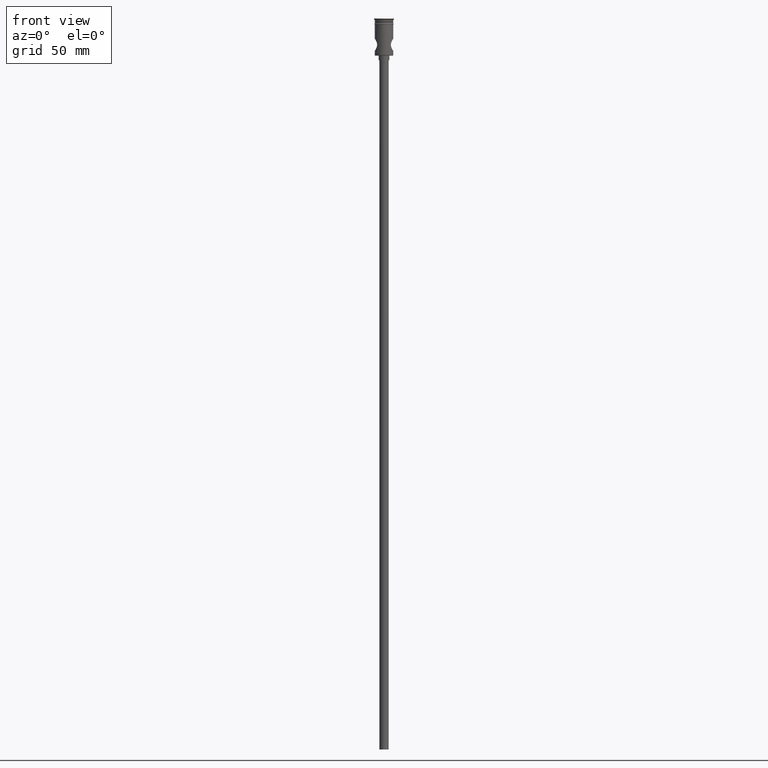
[diagram: clean part render]
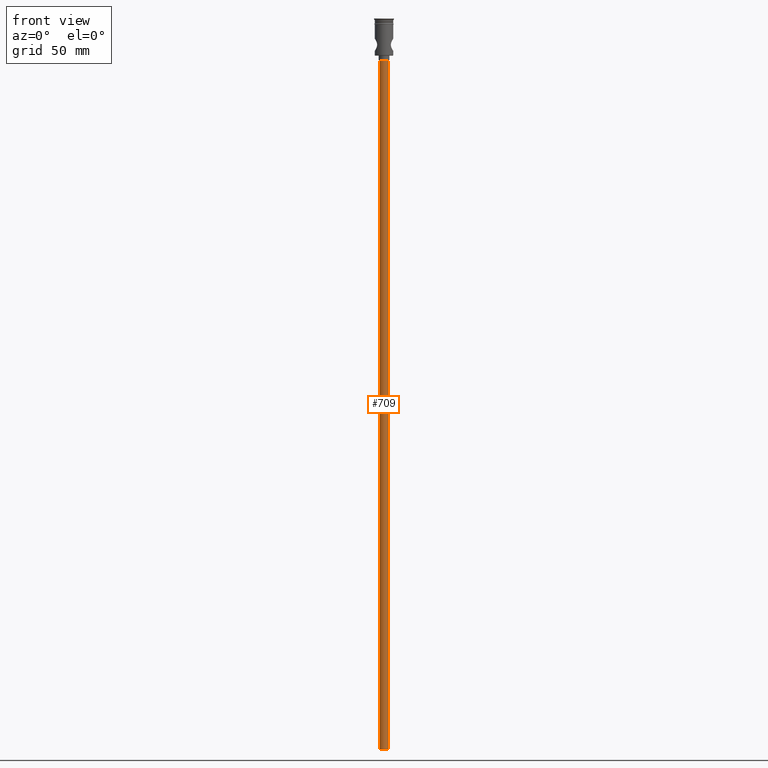
[diagram: same view with one face highlighted and labeled with its STEP entity id]
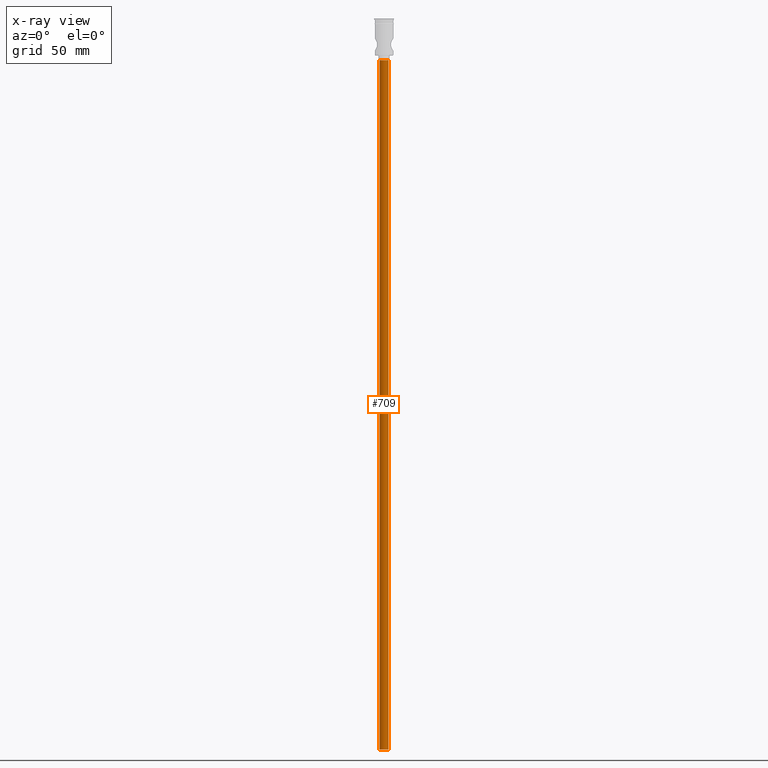
[diagram: x-ray of the same camera — body ghosted, the highlighted face saturated]
A machine part, front view. The second image highlights one B-rep face of the part: STEP entity #709.
The next image is the same camera in x-ray: the body ghosted, the highlighted face saturated — about 0% of this face is hidden behind the body in this view.
In plain terms, the highlighted cylindrical surface (edge-blend (fillet) strip) has radius 3 mm, axis along (-0, -0, 1).
Its self-contained STEP definition (entity closure, byte-faithful):
#20 = EDGE_LOOP ( 'NONE', ( #124, #1323, #924, #383 ) ) ;
#22 = EDGE_CURVE ( 'NONE', #1113, #371, #875, .T. ) ;
#31 = DIRECTION ( 'NONE',  ( 1.000000000000000000, 0.000000000000000000, 0.000000000000000000 ) ) ;
#46 = CIRCLE ( 'NONE', #748, 3.000000000000000444 ) ;
#84 = EDGE_CURVE ( 'NONE', #371, #1154, #327, .T. ) ;
#121 = CYLINDRICAL_SURFACE ( 'NONE', #1148, 3.000000000000000444 ) ;
#124 = ORIENTED_EDGE ( 'NONE', *, *, #913, .F. ) ;
#152 = CARTESIAN_POINT ( 'NONE',  ( -3.000000000000000444, 3.673940397442060361E-16, -27.00000000000000000 ) ) ;
#169 = DIRECTION ( 'NONE',  ( -1.000000000000000000, 0.000000000000000000, 0.000000000000000000 ) ) ;
#176 = CARTESIAN_POINT ( 'NONE',  ( 3.000000000000000444, 0.000000000000000000, -474.0000000000000568 ) ) ;
#256 = CARTESIAN_POINT ( 'NONE',  ( 3.000000000000000444, 0.000000000000000000, -474.0000000000000568 ) ) ;
#279 = CARTESIAN_POINT ( 'NONE',  ( 0.000000000000000000, 0.000000000000000000, -27.00000000000000000 ) ) ;
#287 = DIRECTION ( 'NONE',  ( 0.000000000000000000, 0.000000000000000000, -1.000000000000000000 ) ) ;
#327 = CIRCLE ( 'NONE', #1124, 3.000000000000000444 ) ;
#371 = VERTEX_POINT ( 'NONE', #590 ) ;
#383 = ORIENTED_EDGE ( 'NONE', *, *, #84, .T. ) ;
#479 = CARTESIAN_POINT ( 'NONE',  ( 0.000000000000000000, 0.000000000000000000, -474.0000000000000568 ) ) ;
#561 = LINE ( 'NONE', #672, #1205 ) ;
#574 = DIRECTION ( 'NONE',  ( -0.000000000000000000, -0.000000000000000000, 1.000000000000000000 ) ) ;
#590 = CARTESIAN_POINT ( 'NONE',  ( 3.000000000000000444, 0.000000000000000000, -27.00000000000000000 ) ) ;
#592 = VECTOR ( 'NONE', #1202, 1000.000000000000000 ) ;
#659 = DIRECTION ( 'NONE',  ( 0.000000000000000000, 0.000000000000000000, -1.000000000000000000 ) ) ;
#672 = CARTESIAN_POINT ( 'NONE',  ( -3.000000000000000444, 3.673940397442060361E-16, -474.0000000000000568 ) ) ;
#709 = ADVANCED_FACE ( 'NONE', ( #802 ), #121, .T. ) ;
#720 = CARTESIAN_POINT ( 'NONE',  ( -3.000000000000000444, 3.673940397442060361E-16, -474.0000000000000568 ) ) ;
#748 = AXIS2_PLACEMENT_3D ( 'NONE', #915, #659, #1121 ) ;
#802 = FACE_OUTER_BOUND ( 'NONE', #20, .T. ) ;
#875 = LINE ( 'NONE', #176, #592 ) ;
#913 = EDGE_CURVE ( 'NONE', #1182, #1154, #561, .T. ) ;
#915 = CARTESIAN_POINT ( 'NONE',  ( 0.000000000000000000, 0.000000000000000000, -474.0000000000000568 ) ) ;
#924 = ORIENTED_EDGE ( 'NONE', *, *, #22, .T. ) ;
#1037 = DIRECTION ( 'NONE',  ( -0.000000000000000000, -0.000000000000000000, 1.000000000000000000 ) ) ;
#1113 = VERTEX_POINT ( 'NONE', #256 ) ;
#1121 = DIRECTION ( 'NONE',  ( -1.000000000000000000, 0.000000000000000000, 0.000000000000000000 ) ) ;
#1124 = AXIS2_PLACEMENT_3D ( 'NONE', #279, #287, #169 ) ;
#1148 = AXIS2_PLACEMENT_3D ( 'NONE', #479, #574, #31 ) ;
#1154 = VERTEX_POINT ( 'NONE', #152 ) ;
#1182 = VERTEX_POINT ( 'NONE', #720 ) ;
#1202 = DIRECTION ( 'NONE',  ( -0.000000000000000000, -0.000000000000000000, 1.000000000000000000 ) ) ;
#1205 = VECTOR ( 'NONE', #1037, 1000.000000000000000 ) ;
#1290 = EDGE_CURVE ( 'NONE', #1113, #1182, #46, .T. ) ;
#1323 = ORIENTED_EDGE ( 'NONE', *, *, #1290, .F. ) ;